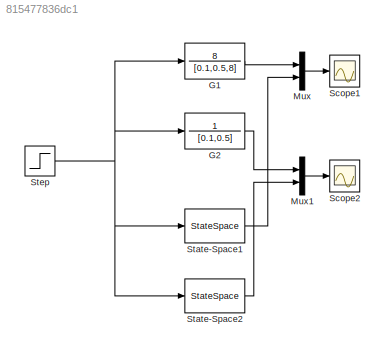
MODEL slx_815477836dc1
KIND model
BLOCK [TransferFcn] G1
  Denominator = [0.1,0.5,8]
  Numerator = 8
BLOCK [TransferFcn] G2 
  Denominator = [0.1,0.5]
  Numerator = 1
BLOCK [Mux] Mux
  DisplayOption = bar
  Inputs = 2
  Ports = [2, 1]
BLOCK [Mux] Mux1
  DisplayOption = bar
  Inputs = 2
  Ports = [2, 1]
BLOCK [Scope] Scope1
  Floating = off
  NumInputPorts = 1
  Ports = [1]
  ShowLegends = off
BLOCK [Scope] Scope2
  Floating = off
  NumInputPorts = 1
  Ports = [1]
  SaveName = ScopeData1
  ShowLegends = off
BLOCK [StateSpace] State-Space1
  A = [-5,-10;8,0]
  B = [4;0]
  C = [0,2.5]
  D = 0
  Ports = [1, 1]
  X0 = 0
BLOCK [StateSpace] State-Space2
  A = -5
  B = 4
  C = 2.5
  D = 0
  Ports = [1, 1]
  X0 = 0
BLOCK [Step] Step
  SampleTime = 0
LINE G1:1 -> Mux:1
LINE G2 :1 -> Mux1:1
LINE Mux1:1 -> Scope2:1
LINE Mux:1 -> Scope1:1
LINE State-Space1:1 -> Mux:2
LINE State-Space2:1 -> Mux1:2
NET Step:1 -> G1:1, G2 :1, State-Space1:1, State-Space2:1
note: NET lines group one-source signal fan-out (src -> all destinations, sorted); 1:1 wires keep LINE
